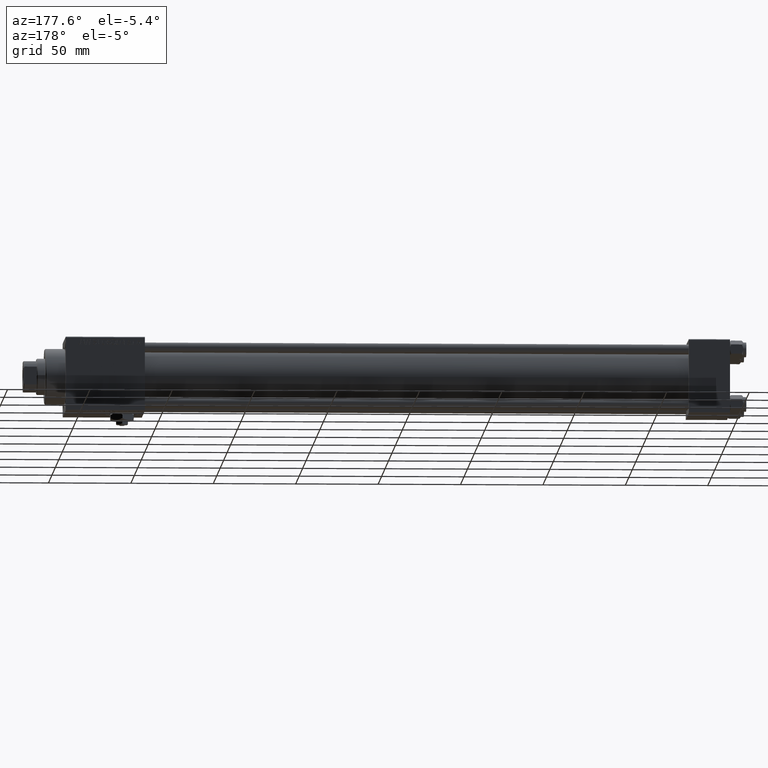
[diagram: clean part render]
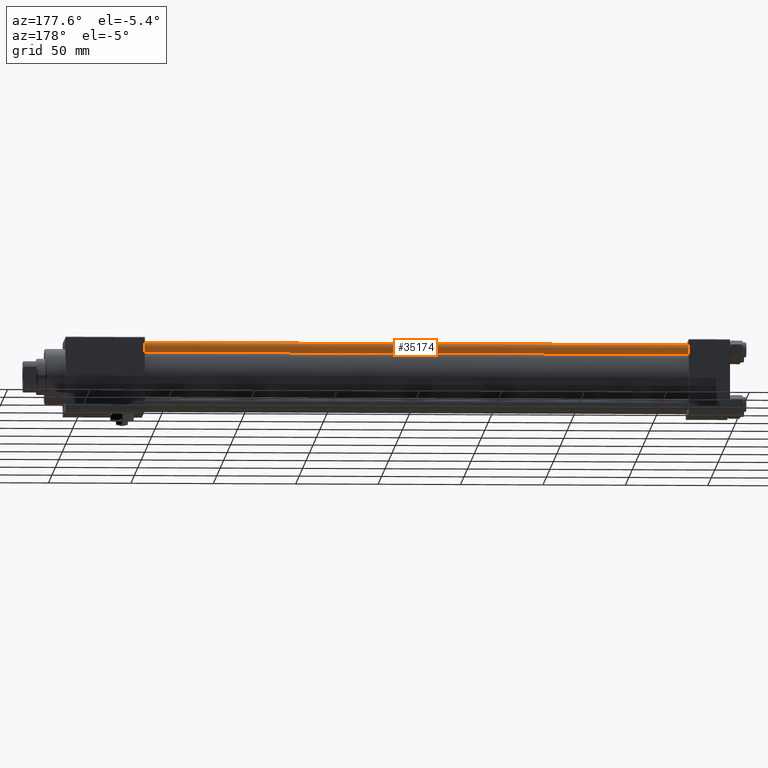
[diagram: same view with one face highlighted and labeled with its STEP entity id]
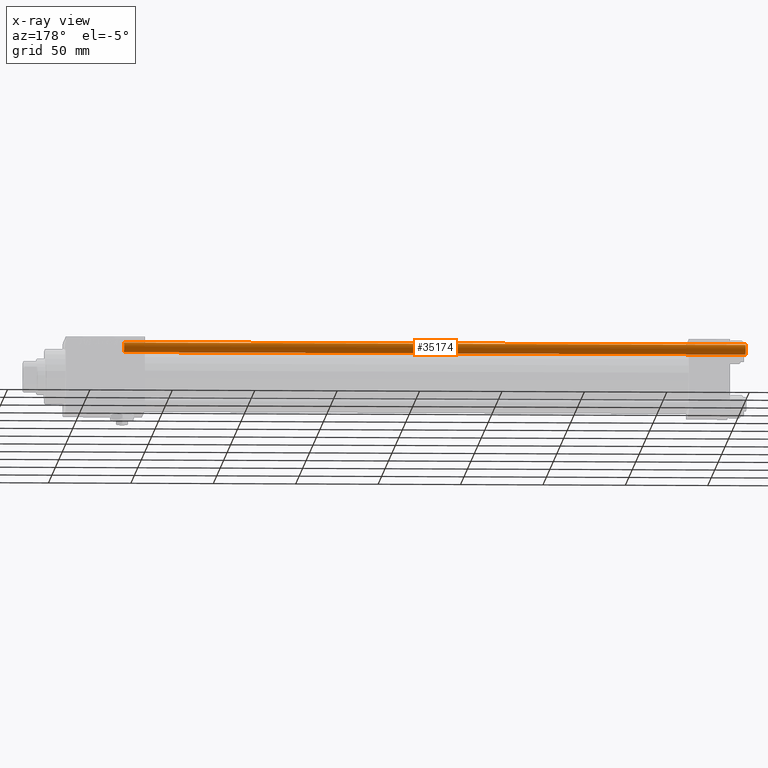
[diagram: x-ray of the same camera — body ghosted, the highlighted face saturated]
A machine part, auxiliary view. The second image highlights one B-rep face of the part: STEP entity #35174.
The next image is the same camera in x-ray: the body ghosted, the highlighted face saturated — about 0% of this face is hidden behind the body in this view.
In plain terms, the highlighted cylindrical surface (edge-blend (fillet) strip) has radius 3 mm, axis along (-1, 0, 0).
Its self-contained STEP definition (entity closure, byte-faithful):
#162 = ORIENTED_EDGE ( 'NONE', *, *, #33673, .T. ) ;
#464 = DIRECTION ( 'NONE',  ( -0.000000000000000000, -0.000000000000000000, -1.000000000000000000 ) ) ;
#3389 = EDGE_CURVE ( 'NONE', #10815, #40683, #31391, .T. ) ;
#3448 = CARTESIAN_POINT ( 'NONE',  ( -3.000000000000000444, 0.000000000000000000, 377.5000000000000000 ) ) ;
#6646 = ORIENTED_EDGE ( 'NONE', *, *, #22114, .T. ) ;
#9624 = EDGE_CURVE ( 'NONE', #17522, #40683, #15132, .T. ) ;
#10815 = VERTEX_POINT ( 'NONE', #18515 ) ;
#10945 = DIRECTION ( 'NONE',  ( -0.000000000000000000, -0.000000000000000000, -1.000000000000000000 ) ) ;
#12536 = ORIENTED_EDGE ( 'NONE', *, *, #9624, .F. ) ;
#12786 = CARTESIAN_POINT ( 'NONE',  ( -3.000000000000000444, 0.000000000000000000, 0.5000000000000004441 ) ) ;
#13234 = DIRECTION ( 'NONE',  ( 1.000000000000000000, 0.000000000000000000, 0.000000000000000000 ) ) ;
#15132 = LINE ( 'NONE', #46871, #26043 ) ;
#16107 = VERTEX_POINT ( 'NONE', #50154 ) ;
#16583 = VECTOR ( 'NONE', #464, 1000.000000000000000 ) ;
#17522 = VERTEX_POINT ( 'NONE', #3448 ) ;
#18515 = CARTESIAN_POINT ( 'NONE',  ( 3.000000000000000444, 3.673940397442060361E-16, 0.5000000000000004441 ) ) ;
#19437 = DIRECTION ( 'NONE',  ( -0.000000000000000000, -0.000000000000000000, -1.000000000000000000 ) ) ;
#19547 = CARTESIAN_POINT ( 'NONE',  ( 0.000000000000000000, 0.000000000000000000, 0.5000000000000004441 ) ) ;
#22114 = EDGE_CURVE ( 'NONE', #17522, #16107, #33904, .T. ) ;
#22603 = CARTESIAN_POINT ( 'NONE',  ( 0.000000000000000000, 0.000000000000000000, 378.0000000000000000 ) ) ;
#26043 = VECTOR ( 'NONE', #10945, 1000.000000000000000 ) ;
#27056 = CYLINDRICAL_SURFACE ( 'NONE', #39247, 3.000000000000000444 ) ;
#31391 = CIRCLE ( 'NONE', #33913, 3.000000000000000444 ) ;
#32132 = DIRECTION ( 'NONE',  ( 1.000000000000000000, 0.000000000000000000, 0.000000000000000000 ) ) ;
#33175 = CARTESIAN_POINT ( 'NONE',  ( 0.000000000000000000, 0.000000000000000000, 377.5000000000000000 ) ) ;
#33673 = EDGE_CURVE ( 'NONE', #16107, #10815, #39369, .T. ) ;
#33904 = CIRCLE ( 'NONE', #36418, 3.000000000000000444 ) ;
#33913 = AXIS2_PLACEMENT_3D ( 'NONE', #19547, #35552, #32132 ) ;
#35174 = ADVANCED_FACE ( 'NONE', ( #46970 ), #27056, .T. ) ;
#35552 = DIRECTION ( 'NONE',  ( -0.000000000000000000, -0.000000000000000000, 1.000000000000000000 ) ) ;
#36412 = CARTESIAN_POINT ( 'NONE',  ( 3.000000000000000444, 3.673940397442060361E-16, 378.0000000000000000 ) ) ;
#36418 = AXIS2_PLACEMENT_3D ( 'NONE', #33175, #37106, #13234 ) ;
#37106 = DIRECTION ( 'NONE',  ( 0.000000000000000000, 0.000000000000000000, -1.000000000000000000 ) ) ;
#37621 = ORIENTED_EDGE ( 'NONE', *, *, #3389, .T. ) ;
#37959 = EDGE_LOOP ( 'NONE', ( #6646, #162, #37621, #12536 ) ) ;
#39247 = AXIS2_PLACEMENT_3D ( 'NONE', #22603, #19437, #43047 ) ;
#39369 = LINE ( 'NONE', #36412, #16583 ) ;
#40683 = VERTEX_POINT ( 'NONE', #12786 ) ;
#43047 = DIRECTION ( 'NONE',  ( -1.000000000000000000, 0.000000000000000000, 0.000000000000000000 ) ) ;
#46871 = CARTESIAN_POINT ( 'NONE',  ( -3.000000000000000444, 0.000000000000000000, 378.0000000000000000 ) ) ;
#46970 = FACE_OUTER_BOUND ( 'NONE', #37959, .T. ) ;
#50154 = CARTESIAN_POINT ( 'NONE',  ( 3.000000000000000444, 3.673940397442060361E-16, 377.5000000000000000 ) ) ;